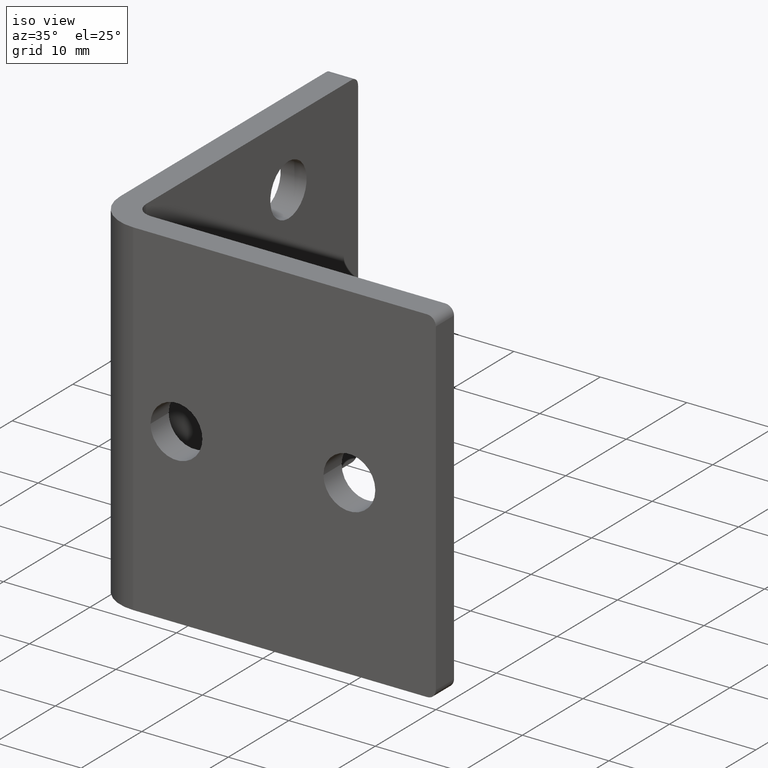
[diagram: clean part render]
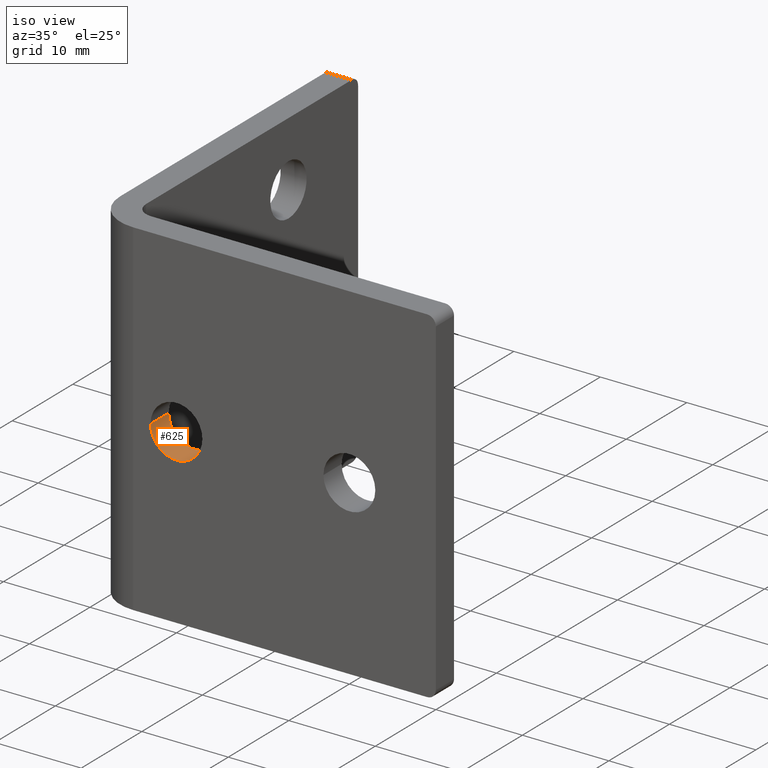
[diagram: same view with one face highlighted and labeled with its STEP entity id]
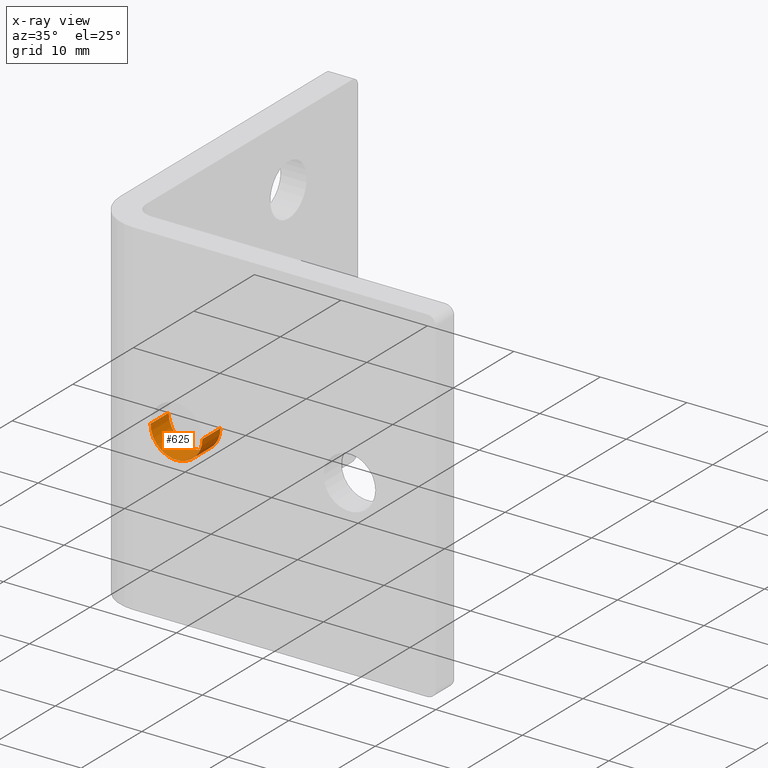
[diagram: x-ray of the same camera — body ghosted, the highlighted face saturated]
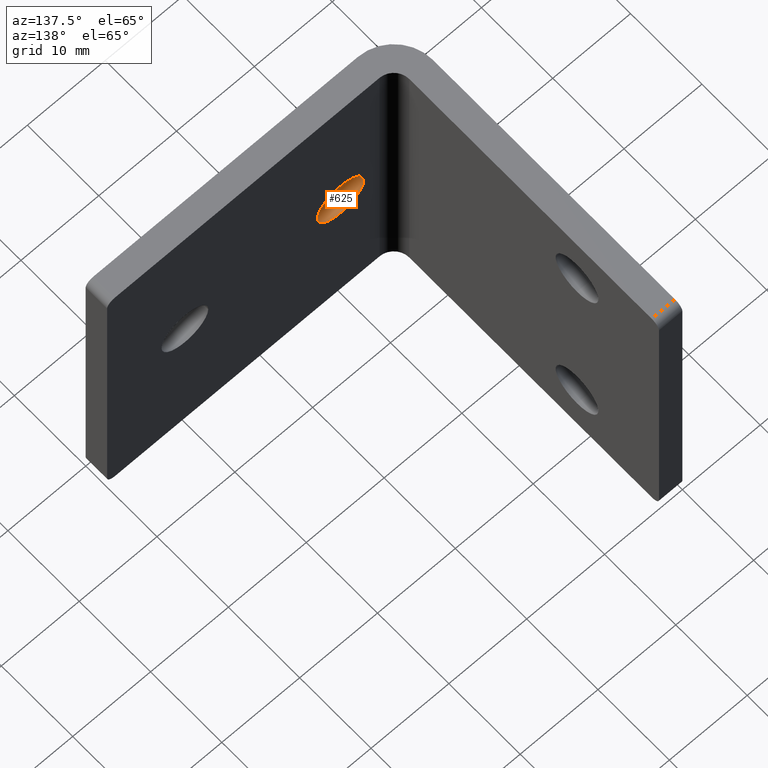
[diagram: same view with one face highlighted and labeled with its STEP entity id]
A machine part, iso view. The second image highlights one B-rep face of the part: STEP entity #625.
The next image is the same camera in x-ray: the body ghosted, the highlighted face saturated — about 0% of this face is hidden behind the body in this view.
A second angle (auxiliary view) of the same face is appended — the face is thin or edge-on in the first view.
In plain terms, the highlighted cylindrical surface (edge-blend (fillet) strip) has radius 3 mm, axis along (0, -1, 0).
Its self-contained STEP definition (entity closure, byte-faithful):
#91=CARTESIAN_POINT('',(-26.999999999999993,2.999999999999989,0.0));
#92=VERTEX_POINT('',#91);
#93=CARTESIAN_POINT('',(-33.0,2.999999999999989,0.0));
#94=VERTEX_POINT('',#93);
#102=CARTESIAN_POINT('',(-26.999999999999993,-7.105427E-015,0.0));
#103=VERTEX_POINT('',#102);
#104=CARTESIAN_POINT('',(-26.999999999999993,2.999999999999989,0.0));
#105=DIRECTION('',(0.0,-1.0,0.0));
#106=VECTOR('',#105,2.999999999999996);
#107=LINE('',#104,#106);
#108=EDGE_CURVE('',#92,#103,#107,.T.);
#110=CARTESIAN_POINT('',(-33.0,-7.105427E-015,0.0));
#111=VERTEX_POINT('',#110);
#119=CARTESIAN_POINT('',(-33.0,2.999999999999989,0.0));
#120=DIRECTION('',(0.0,-1.0,0.0));
#121=VECTOR('',#120,2.999999999999996);
#122=LINE('',#119,#121);
#123=EDGE_CURVE('',#94,#111,#122,.T.);
#315=CARTESIAN_POINT('',(-29.999999999999986,2.999999999999989,0.0));
#316=DIRECTION('',(0.0,-1.0,0.0));
#317=DIRECTION('',(-1.0,0.0,0.0));
#318=AXIS2_PLACEMENT_3D('',#315,#316,#317);
#319=CIRCLE('',#318,3.000000000000002);
#320=EDGE_CURVE('',#94,#92,#319,.T.);
#416=CARTESIAN_POINT('',(-29.999999999999986,-7.105427E-015,0.0));
#417=DIRECTION('',(0.0,1.0,0.0));
#418=DIRECTION('',(-1.0,0.0,0.0));
#419=AXIS2_PLACEMENT_3D('',#416,#417,#418);
#420=CIRCLE('',#419,3.000000000000002);
#421=EDGE_CURVE('',#103,#111,#420,.T.);
#614=CARTESIAN_POINT('',(-29.999999999999986,3.000000009999989,0.0));
#615=DIRECTION('',(0.0,-1.0,0.0));
#616=DIRECTION('',(0.0,0.0,1.0));
#617=AXIS2_PLACEMENT_3D('',#614,#615,#616);
#618=CYLINDRICAL_SURFACE('',#617,3.000000000000002);
#619=ORIENTED_EDGE('',*,*,#108,.F.);
#620=ORIENTED_EDGE('',*,*,#320,.F.);
#621=ORIENTED_EDGE('',*,*,#123,.T.);
#622=ORIENTED_EDGE('',*,*,#421,.F.);
#623=EDGE_LOOP('',(#619,#620,#621,#622));
#624=FACE_OUTER_BOUND('',#623,.T.);
#625=ADVANCED_FACE('',(#624),#618,.F.);